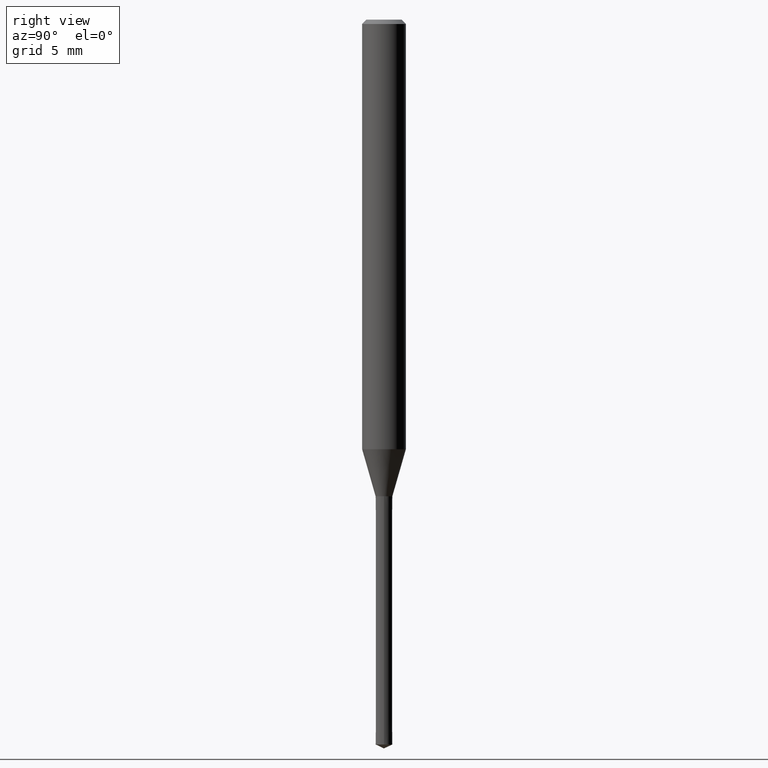
[diagram: clean part render]
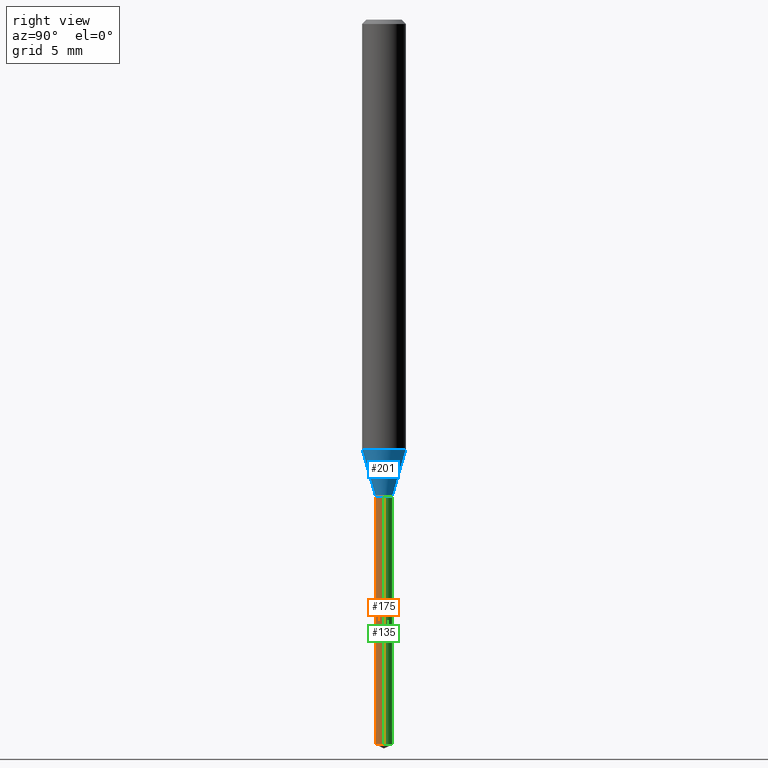
[diagram: same view with three faces highlighted in distinct colors, each labeled with its STEP entity id]
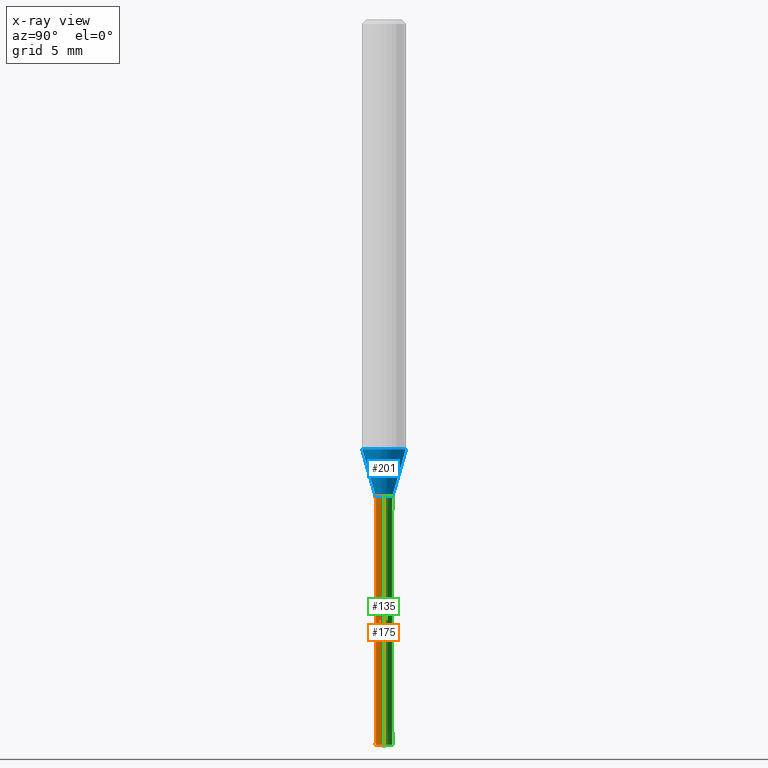
[diagram: x-ray of the same camera — body ghosted, the three highlighted faces saturated]
A machine part, right view with three faces highlighted in distinct colors.
The next image is the same camera in x-ray (body ghosted, the three faces saturated) — at least one of them is partly hidden behind the body in this view.
Their STEP definitions:

[orange] entity #175 — the highlighted conical surface has half-angle 0.003 deg.
#93=EDGE_CURVE('',#115,#117,#228,.T.);
#115=VERTEX_POINT('',#251);
#117=VERTEX_POINT('',#253);
#119=EDGE_CURVE('',#163,#157,#255,.T.);
#141=EDGE_CURVE('',#163,#115,#281,.T.);
#157=VERTEX_POINT('',#300);
#161=EDGE_CURVE('',#117,#157,#304,.T.);
#163=VERTEX_POINT('',#306);
#175=ADVANCED_FACE('',(#320),#321,.T.);
#228=CIRCLE('',#373,0.576);
#251=CARTESIAN_POINT('',(0.576,7.05373259801689E-017,-32.7));
#253=CARTESIAN_POINT('',(-0.576,0.0,-32.7));
#255=CIRCLE('',#411,0.575);
#281=LINE('',#443,#444);
#300=CARTESIAN_POINT('',(-0.575,0.0,-49.7318731));
#304=LINE('',#473,#474);
#306=CARTESIAN_POINT('',(0.575,7.04148653447867E-017,-49.7318731));
#320=FACE_OUTER_BOUND('',#494,.T.);
#321=CONICAL_SURFACE('',#495,0.5755,5.87134481909046E-005);
#373=AXIS2_PLACEMENT_3D('',#536,#537,#538);
#411=AXIS2_PLACEMENT_3D('',#561,#562,#563);
#443=CARTESIAN_POINT('',(0.5755,7.04760956624778E-017,-41.21593655));
#444=VECTOR('',#604,1.0);
#473=CARTESIAN_POINT('',(-0.5755,-7.04760956624778E-017,-41.21593655));
#474=VECTOR('',#632,1.0);
#494=EDGE_LOOP('',(#657,#658,#659,#660));
#495=AXIS2_PLACEMENT_3D('',#661,#662,#663);
#536=CARTESIAN_POINT('',(0.0,0.0,-32.7));
#537=DIRECTION('',(0.0,0.0,-1.0));
#538=DIRECTION('',(-1.0,0.0,0.0));
#561=CARTESIAN_POINT('',(0.0,0.0,-49.7318731));
#562=DIRECTION('',(0.0,0.0,-1.0));
#563=DIRECTION('',(-1.0,0.0,0.0));
#604=DIRECTION('',(5.87134481571711E-005,7.19008616680924E-021,0.999999998276366));
#632=DIRECTION('',(5.87134481571711E-005,7.19008616680924E-021,-0.999999998276366));
#657=ORIENTED_EDGE('',*,*,#161,.T.);
#658=ORIENTED_EDGE('',*,*,#119,.F.);
#659=ORIENTED_EDGE('',*,*,#141,.T.);
#660=ORIENTED_EDGE('',*,*,#93,.T.);
#661=CARTESIAN_POINT('',(0.0,0.0,-41.21593655));
#662=DIRECTION('',(-0.0,-0.0,1.0));
#663=DIRECTION('',(-1.0,0.0,0.0));

[blue] entity #201 — the highlighted conical surface has half-angle 16.003 deg.
#91=EDGE_CURVE('',#195,#145,#226,.T.);
#123=EDGE_CURVE('',#183,#185,#259,.T.);
#129=EDGE_CURVE('',#183,#145,#267,.T.);
#145=VERTEX_POINT('',#285);
#155=EDGE_CURVE('',#185,#195,#298,.T.);
#183=VERTEX_POINT('',#329);
#185=VERTEX_POINT('',#331);
#195=VERTEX_POINT('',#343);
#201=ADVANCED_FACE('',(#349),#350,.T.);
#226=LINE('',#369,#370);
#259=LINE('',#416,#417);
#267=CIRCLE('',#426,1.5);
#285=CARTESIAN_POINT('',(1.83690953073357E-016,-1.5,-29.474));
#298=CIRCLE('',#464,0.575);
#329=CARTESIAN_POINT('',(0.0,1.5,-29.474));
#331=CARTESIAN_POINT('',(0.0,0.575,-32.6991339745962));
#343=CARTESIAN_POINT('',(7.04148653447867E-017,-0.575,-32.6991339745962));
#349=FACE_OUTER_BOUND('',#528,.T.);
#350=CONICAL_SURFACE('',#529,1.0375,0.279312190951098);
#369=CARTESIAN_POINT('',(1.27052909209072E-016,-1.0375,-31.0865669872981));
#370=VECTOR('',#535,1.0);
#416=CARTESIAN_POINT('',(-1.27052909209072E-016,1.0375,-31.0865669872981));
#417=VECTOR('',#564,1.0);
#426=AXIS2_PLACEMENT_3D('',#579,#580,#581);
#464=AXIS2_PLACEMENT_3D('',#628,#629,#630);
#528=EDGE_LOOP('',(#689,#690,#691,#692));
#529=AXIS2_PLACEMENT_3D('',#693,#694,#695);
#535=DIRECTION('',(3.3761731064943E-017,-0.275694560619926,0.961245290882918));
#564=DIRECTION('',(3.3761731064943E-017,-0.275694560619926,-0.961245290882918));
#579=CARTESIAN_POINT('',(0.0,0.0,-29.474));
#580=DIRECTION('',(0.0,0.0,-1.0));
#581=DIRECTION('',(0.0,1.0,0.0));
#628=CARTESIAN_POINT('',(0.0,0.0,-32.6991339745962));
#629=DIRECTION('',(0.0,0.0,-1.0));
#630=DIRECTION('',(0.0,1.0,0.0));
#689=ORIENTED_EDGE('',*,*,#123,.F.);
#690=ORIENTED_EDGE('',*,*,#129,.T.);
#691=ORIENTED_EDGE('',*,*,#91,.F.);
#692=ORIENTED_EDGE('',*,*,#155,.F.);
#693=CARTESIAN_POINT('',(0.0,0.0,-31.0865669872981));
#694=DIRECTION('',(-0.0,-0.0,1.0));
#695=DIRECTION('',(0.0,1.0,0.0));

[green] entity #135 — the highlighted conical surface has half-angle 0.003 deg.
#115=VERTEX_POINT('',#251);
#117=VERTEX_POINT('',#253);
#135=ADVANCED_FACE('',(#273),#274,.T.);
#137=EDGE_CURVE('',#117,#115,#276,.T.);
#141=EDGE_CURVE('',#163,#115,#281,.T.);
#157=VERTEX_POINT('',#300);
#161=EDGE_CURVE('',#117,#157,#304,.T.);
#163=VERTEX_POINT('',#306);
#193=EDGE_CURVE('',#157,#163,#341,.T.);
#251=CARTESIAN_POINT('',(0.576,7.05373259801689E-017,-32.7));
#253=CARTESIAN_POINT('',(-0.576,0.0,-32.7));
#273=FACE_OUTER_BOUND('',#433,.T.);
#274=CONICAL_SURFACE('',#434,0.5755,5.87134481909046E-005);
#276=CIRCLE('',#437,0.576);
#281=LINE('',#443,#444);
#300=CARTESIAN_POINT('',(-0.575,0.0,-49.7318731));
#304=LINE('',#473,#474);
#306=CARTESIAN_POINT('',(0.575,7.04148653447867E-017,-49.7318731));
#341=CIRCLE('',#519,0.575);
#433=EDGE_LOOP('',(#586,#587,#588,#589));
#434=AXIS2_PLACEMENT_3D('',#590,#591,#592);
#437=AXIS2_PLACEMENT_3D('',#593,#594,#595);
#443=CARTESIAN_POINT('',(0.5755,7.04760956624778E-017,-41.21593655));
#444=VECTOR('',#604,1.0);
#473=CARTESIAN_POINT('',(-0.5755,-7.04760956624778E-017,-41.21593655));
#474=VECTOR('',#632,1.0);
#519=AXIS2_PLACEMENT_3D('',#682,#683,#684);
#586=ORIENTED_EDGE('',*,*,#161,.F.);
#587=ORIENTED_EDGE('',*,*,#137,.T.);
#588=ORIENTED_EDGE('',*,*,#141,.F.);
#589=ORIENTED_EDGE('',*,*,#193,.F.);
#590=CARTESIAN_POINT('',(0.0,0.0,-41.21593655));
#591=DIRECTION('',(-0.0,-0.0,1.0));
#592=DIRECTION('',(-1.0,0.0,0.0));
#593=CARTESIAN_POINT('',(0.0,0.0,-32.7));
#594=DIRECTION('',(0.0,0.0,-1.0));
#595=DIRECTION('',(-1.0,0.0,0.0));
#604=DIRECTION('',(5.87134481571711E-005,7.19008616680924E-021,0.999999998276366));
#632=DIRECTION('',(5.87134481571711E-005,7.19008616680924E-021,-0.999999998276366));
#682=CARTESIAN_POINT('',(0.0,0.0,-49.7318731));
#683=DIRECTION('',(0.0,0.0,-1.0));
#684=DIRECTION('',(-1.0,0.0,0.0));